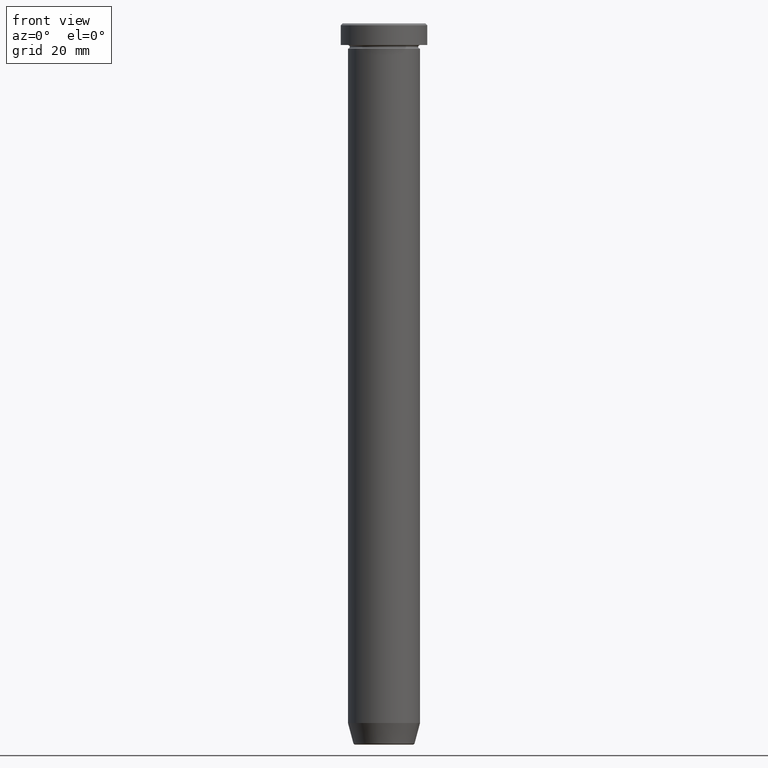
[diagram: clean part render]
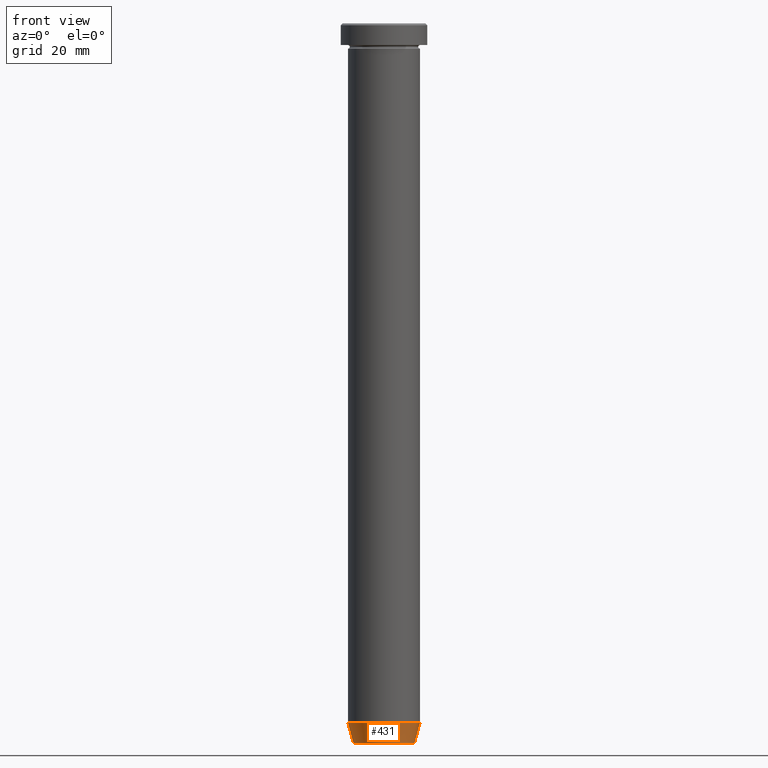
[diagram: same view with one face highlighted and labeled with its STEP entity id]
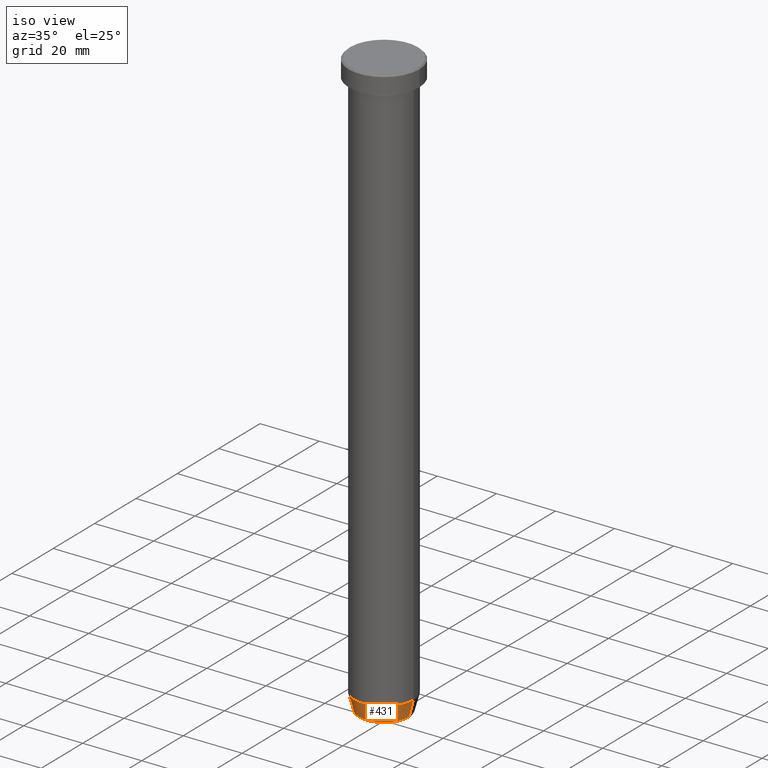
[diagram: same view with one face highlighted and labeled with its STEP entity id]
A machine part, front view. The second image highlights one B-rep face of the part: STEP entity #431.
A second angle (iso view) of the same face is appended — the face is thin or edge-on in the first view.
In plain terms, the highlighted conical surface has half-angle 15 deg.
Its self-contained STEP definition (entity closure, byte-faithful):
#35 = VERTEX_POINT ( 'NONE', #554 ) ;
#61 = ORIENTED_EDGE ( 'NONE', *, *, #560, .T. ) ;
#71 = CIRCLE ( 'NONE', #327, 8.491604264568307414 ) ;
#75 = VERTEX_POINT ( 'NONE', #413 ) ;
#76 = DIRECTION ( 'NONE',  ( -1.000000000000000000, 0.000000000000000000, 0.000000000000000000 ) ) ;
#127 = CIRCLE ( 'NONE', #558, 9.999999999999998224 ) ;
#128 = VECTOR ( 'NONE', #584, 1000.000000000000000 ) ;
#179 = LINE ( 'NONE', #365, #374 ) ;
#180 = CONICAL_SURFACE ( 'NONE', #279, 8.392304845413260495, 0.2617993877991495744 ) ;
#200 = DIRECTION ( 'NONE',  ( 1.000000000000000000, 0.000000000000000000, 0.000000000000000000 ) ) ;
#209 = LINE ( 'NONE', #337, #128 ) ;
#218 = FACE_OUTER_BOUND ( 'NONE', #535, .T. ) ;
#245 = DIRECTION ( 'NONE',  ( -0.000000000000000000, -0.000000000000000000, 1.000000000000000000 ) ) ;
#276 = EDGE_CURVE ( 'NONE', #35, #75, #127, .T. ) ;
#278 = EDGE_CURVE ( 'NONE', #504, #35, #179, .T. ) ;
#279 = AXIS2_PLACEMENT_3D ( 'NONE', #299, #245, #317 ) ;
#294 = CARTESIAN_POINT ( 'NONE',  ( 0.000000000000000000, 0.000000000000000000, -199.6294095225512990 ) ) ;
#299 = CARTESIAN_POINT ( 'NONE',  ( 0.000000000000000000, 0.000000000000000000, -200.0000000000000000 ) ) ;
#317 = DIRECTION ( 'NONE',  ( 1.000000000000000000, 0.000000000000000000, 0.000000000000000000 ) ) ;
#327 = AXIS2_PLACEMENT_3D ( 'NONE', #294, #382, #76 ) ;
#337 = CARTESIAN_POINT ( 'NONE',  ( 8.392304845413260495, 0.000000000000000000, -200.0000000000000000 ) ) ;
#365 = CARTESIAN_POINT ( 'NONE',  ( -8.392304845413260495, 1.027760926640417114E-15, -200.0000000000000000 ) ) ;
#370 = CARTESIAN_POINT ( 'NONE',  ( -8.491604264568307414, 1.132284198685156387E-15, -199.6294095225512990 ) ) ;
#374 = VECTOR ( 'NONE', #551, 1000.000000000000000 ) ;
#382 = DIRECTION ( 'NONE',  ( -0.000000000000000000, -0.000000000000000000, 1.000000000000000000 ) ) ;
#411 = ORIENTED_EDGE ( 'NONE', *, *, #276, .F. ) ;
#413 = CARTESIAN_POINT ( 'NONE',  ( 9.999999999999998224, 0.000000000000000000, -194.0000000000000000 ) ) ;
#419 = CARTESIAN_POINT ( 'NONE',  ( 8.491604264568307414, 0.000000000000000000, -199.6294095225512990 ) ) ;
#431 = ADVANCED_FACE ( 'NONE', ( #218 ), #180, .T. ) ;
#452 = ORIENTED_EDGE ( 'NONE', *, *, #278, .F. ) ;
#464 = VERTEX_POINT ( 'NONE', #419 ) ;
#485 = CARTESIAN_POINT ( 'NONE',  ( 0.000000000000000000, 0.000000000000000000, -194.0000000000000000 ) ) ;
#488 = ORIENTED_EDGE ( 'NONE', *, *, #556, .T. ) ;
#492 = DIRECTION ( 'NONE',  ( -0.000000000000000000, -0.000000000000000000, 1.000000000000000000 ) ) ;
#504 = VERTEX_POINT ( 'NONE', #370 ) ;
#535 = EDGE_LOOP ( 'NONE', ( #452, #488, #61, #411 ) ) ;
#551 = DIRECTION ( 'NONE',  ( -0.2588190451025209060, 3.169619151431766790E-17, 0.9659258262890682012 ) ) ;
#554 = CARTESIAN_POINT ( 'NONE',  ( -9.999999999999998224, 1.224646799147353059E-15, -194.0000000000000000 ) ) ;
#556 = EDGE_CURVE ( 'NONE', #504, #464, #71, .T. ) ;
#558 = AXIS2_PLACEMENT_3D ( 'NONE', #485, #492, #200 ) ;
#560 = EDGE_CURVE ( 'NONE', #464, #75, #209, .T. ) ;
#584 = DIRECTION ( 'NONE',  ( 0.2588190451025209060, 0.000000000000000000, 0.9659258262890682012 ) ) ;